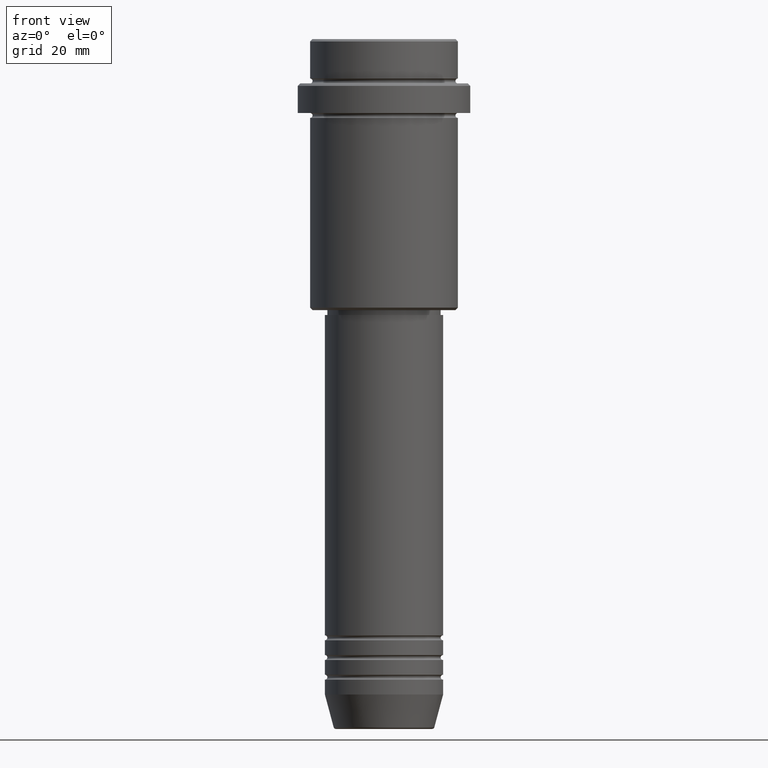
[diagram: clean part render]
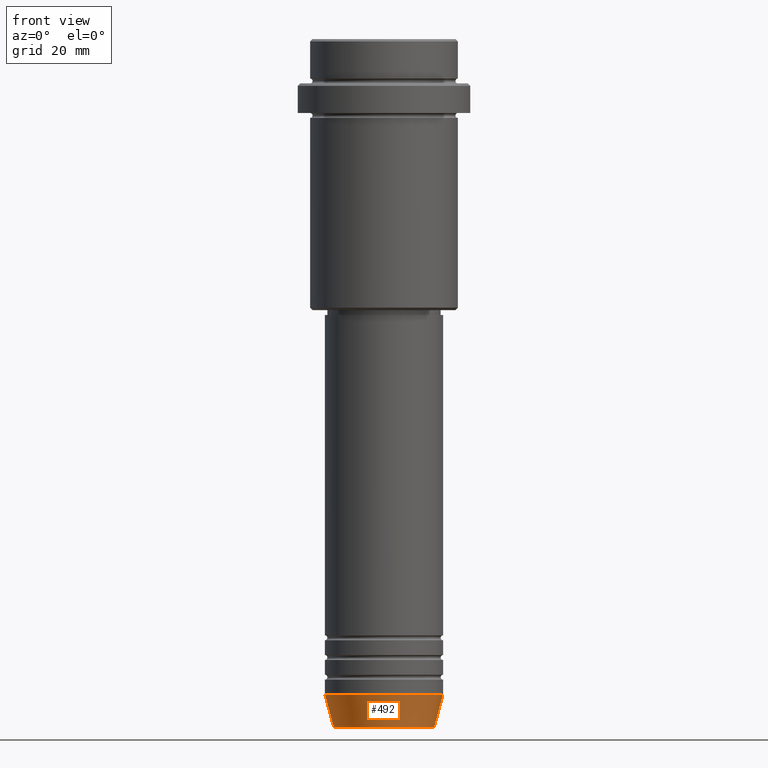
[diagram: same view with one face highlighted and labeled with its STEP entity id]
A machine part, front view. The second image highlights one B-rep face of the part: STEP entity #492.
In plain terms, the highlighted conical surface has half-angle 15 deg.
Its self-contained STEP definition (entity closure, byte-faithful):
#13 = DIRECTION ( 'NONE',  ( -0.2588190451025213501, 3.169619151431772337E-17, 0.9659258262890680902 ) ) ;
#27 = EDGE_CURVE ( 'NONE', #386, #1220, #1223, .T. ) ;
#35 = CARTESIAN_POINT ( 'NONE',  ( -12.00000000000000000, 1.469576158976823947E-15, -133.0000000000000000 ) ) ;
#38 = VECTOR ( 'NONE', #811, 1000.000000000000000 ) ;
#91 = VECTOR ( 'NONE', #13, 1000.000000000000000 ) ;
#106 = ORIENTED_EDGE ( 'NONE', *, *, #1103, .F. ) ;
#124 = DIRECTION ( 'NONE',  ( 1.000000000000000000, 0.000000000000000000, 0.000000000000000000 ) ) ;
#125 = LINE ( 'NONE', #35, #91 ) ;
#133 = CARTESIAN_POINT ( 'NONE',  ( -12.00000000000000000, 1.469576158976823947E-15, -133.0000000000000000 ) ) ;
#190 = EDGE_CURVE ( 'NONE', #962, #386, #1074, .T. ) ;
#220 = CARTESIAN_POINT ( 'NONE',  ( 0.000000000000000000, 0.000000000000000000, -133.0000000000000000 ) ) ;
#295 = ORIENTED_EDGE ( 'NONE', *, *, #27, .T. ) ;
#301 = AXIS2_PLACEMENT_3D ( 'NONE', #220, #743, #408 ) ;
#340 = EDGE_LOOP ( 'NONE', ( #559, #1273, #295, #106 ) ) ;
#370 = CARTESIAN_POINT ( 'NONE',  ( 12.00000000000000000, 0.000000000000000000, -133.0000000000000000 ) ) ;
#373 = DIRECTION ( 'NONE',  ( -0.000000000000000000, -0.000000000000000000, 1.000000000000000000 ) ) ;
#386 = VERTEX_POINT ( 'NONE', #861 ) ;
#408 = DIRECTION ( 'NONE',  ( 1.000000000000000000, 0.000000000000000000, 0.000000000000000000 ) ) ;
#492 = ADVANCED_FACE ( 'NONE', ( #905 ), #572, .T. ) ;
#559 = ORIENTED_EDGE ( 'NONE', *, *, #958, .F. ) ;
#572 = CONICAL_SURFACE ( 'NONE', #797, 12.00000000000000000, 0.2617993877991500740 ) ;
#577 = CARTESIAN_POINT ( 'NONE',  ( -10.22365507213719127, 1.360806402472382744E-15, -139.6294095225512706 ) ) ;
#683 = CARTESIAN_POINT ( 'NONE',  ( 0.000000000000000000, 0.000000000000000000, -133.0000000000000000 ) ) ;
#743 = DIRECTION ( 'NONE',  ( -0.000000000000000000, -0.000000000000000000, 1.000000000000000000 ) ) ;
#760 = AXIS2_PLACEMENT_3D ( 'NONE', #934, #995, #124 ) ;
#797 = AXIS2_PLACEMENT_3D ( 'NONE', #683, #373, #911 ) ;
#811 = DIRECTION ( 'NONE',  ( 0.2588190451025213501, 0.000000000000000000, 0.9659258262890680902 ) ) ;
#861 = CARTESIAN_POINT ( 'NONE',  ( 10.22365507213719127, 0.000000000000000000, -139.6294095225512706 ) ) ;
#887 = CARTESIAN_POINT ( 'NONE',  ( 12.00000000000000000, 0.000000000000000000, -133.0000000000000000 ) ) ;
#905 = FACE_OUTER_BOUND ( 'NONE', #340, .T. ) ;
#911 = DIRECTION ( 'NONE',  ( 1.000000000000000000, 0.000000000000000000, 0.000000000000000000 ) ) ;
#917 = CIRCLE ( 'NONE', #301, 12.00000000000000000 ) ;
#934 = CARTESIAN_POINT ( 'NONE',  ( 0.000000000000000000, 0.000000000000000000, -139.6294095225512706 ) ) ;
#958 = EDGE_CURVE ( 'NONE', #962, #1235, #125, .T. ) ;
#962 = VERTEX_POINT ( 'NONE', #577 ) ;
#995 = DIRECTION ( 'NONE',  ( -0.000000000000000000, -0.000000000000000000, 1.000000000000000000 ) ) ;
#1074 = CIRCLE ( 'NONE', #760, 10.22365507213719127 ) ;
#1103 = EDGE_CURVE ( 'NONE', #1235, #1220, #917, .T. ) ;
#1220 = VERTEX_POINT ( 'NONE', #887 ) ;
#1223 = LINE ( 'NONE', #370, #38 ) ;
#1235 = VERTEX_POINT ( 'NONE', #133 ) ;
#1273 = ORIENTED_EDGE ( 'NONE', *, *, #190, .T. ) ;